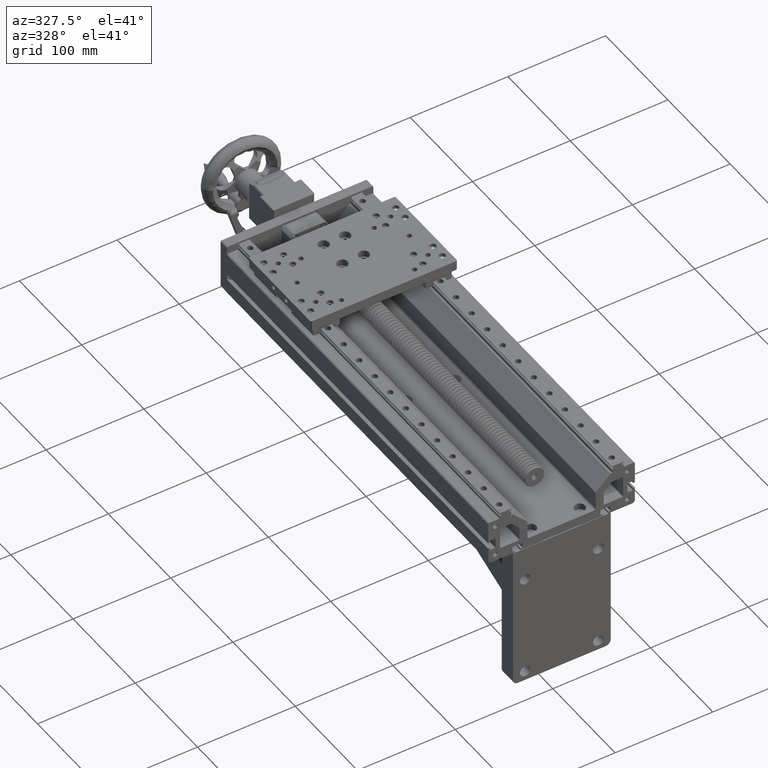
[diagram: clean part render]
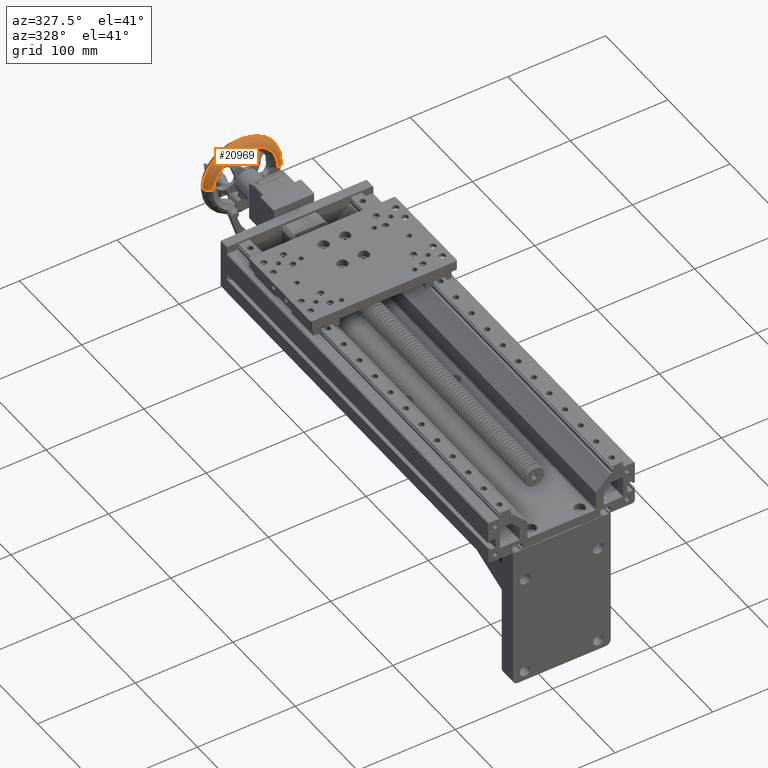
[diagram: same view with one face highlighted and labeled with its STEP entity id]
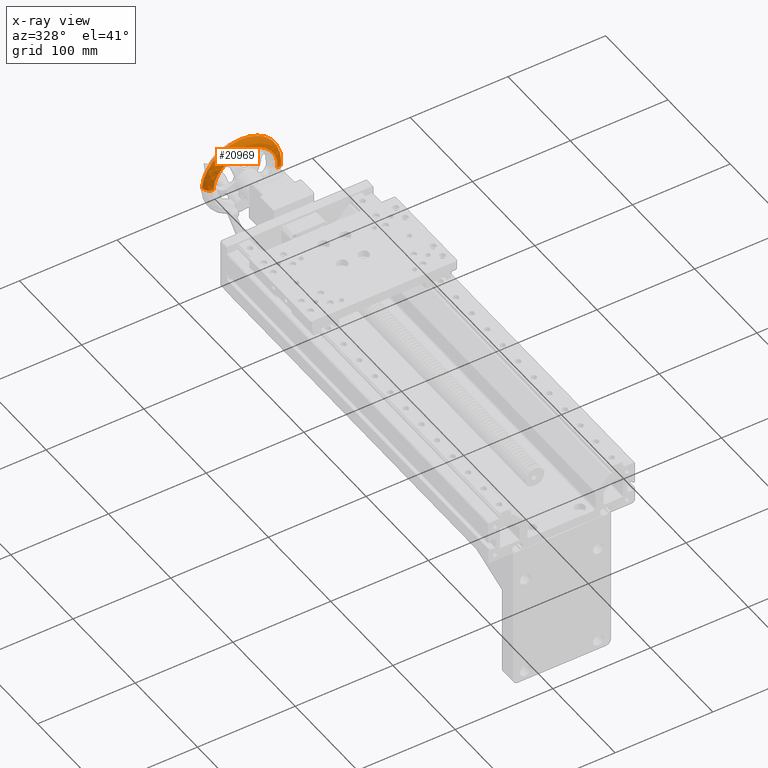
[diagram: x-ray of the same camera — body ghosted, the highlighted face saturated]
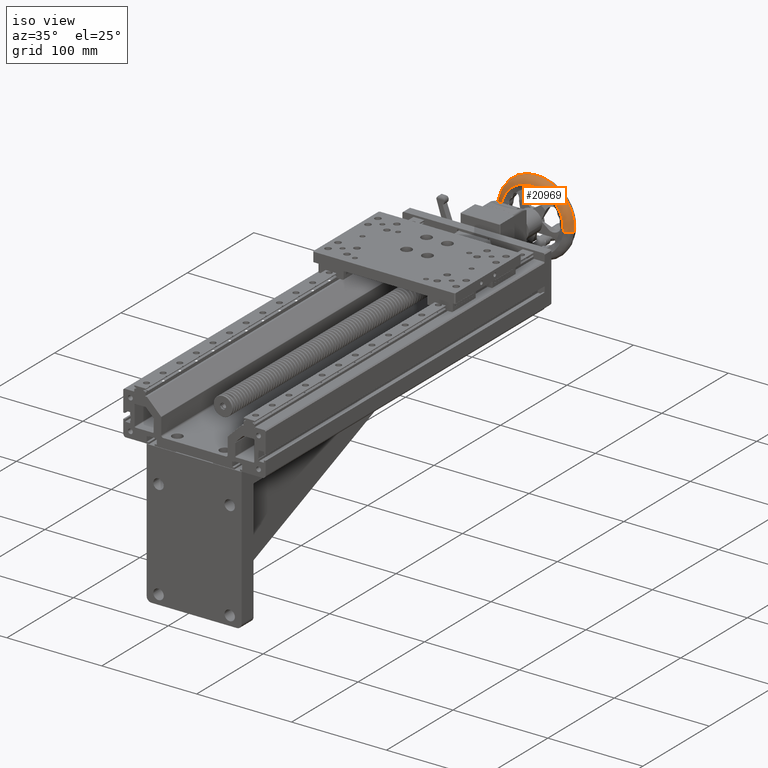
[diagram: same view with one face highlighted and labeled with its STEP entity id]
A machine part, auxiliary view. The second image highlights one B-rep face of the part: STEP entity #20969.
The next image is the same camera in x-ray: the body ghosted, the highlighted face saturated — about 0% of this face is hidden behind the body in this view.
A second angle (iso view) of the same face is appended — the face is thin or edge-on in the first view.
In plain terms, the highlighted face is a freeform B-spline surface patch.
Its self-contained STEP definition (entity closure, byte-faithful):
#504 = AXIS2_PLACEMENT_3D ( 'NONE', #29268, #2544, #10132 ) ;
#1074 = VERTEX_POINT ( 'NONE', #15726 ) ;
#1578 = CARTESIAN_POINT ( 'NONE',  ( -122.0710593101562438, 329.0134646088897057, 110.5216448162140068 ) ) ;
#1604 = DIRECTION ( 'NONE',  ( -5.716530647023959821E-16, -1.000000000000000000, -2.244361584020103863E-16 ) ) ;
#1622 =( BOUNDED_SURFACE ( )  B_SPLINE_SURFACE ( 3, 3, ( 
 ( #36316, #40616, #16962, #5372 ),
 ( #1823, #21246, #20757, #17206 ),
 ( #6111, #36581, #21501, #36071 ),
 ( #36834, #40114, #2323, #1578 ) ),
 .UNSPECIFIED., .F., .F., .F. ) 
 B_SPLINE_SURFACE_WITH_KNOTS ( ( 4, 4 ),
 ( 4, 4 ),
 ( 0.000000000000000000, 1.000000000000000000 ),
 ( 0.000000000000000000, 1.000000000000000000 ),
 .UNSPECIFIED. ) 
 GEOMETRIC_REPRESENTATION_ITEM ( )  RATIONAL_B_SPLINE_SURFACE ( (
 ( 1.000000000000000000, 0.3333333333333334259, 0.3333333333333334259, 1.000000000000000000),
 ( 0.8047884369213043065, 0.2682628123071015280, 0.2682628123071015280, 0.8047884369213043065),
 ( 0.8047884369213043065, 0.2682628123071015280, 0.2682628123071015280, 0.8047884369213043065),
 ( 1.000000000000000000, 0.3333333333333334259, 0.3333333333333334259, 1.000000000000000000) ) ) 
 REPRESENTATION_ITEM ( '' )  SURFACE ( )  );
#1823 = CARTESIAN_POINT ( 'NONE',  ( -45.19005230720301114, 322.0143446549475925, 104.6973255086508487 ) ) ;
#2323 = CARTESIAN_POINT ( 'NONE',  ( -116.0277696777333887, 329.0134646088897057, 190.2930598119295382 ) ) ;
#2544 = DIRECTION ( 'NONE',  ( 0.07554112040528571104, -2.669126656623855931E-16, 0.9971426874464427437 ) ) ;
#3409 = CIRCLE ( 'NONE', #16102, 7.000000000000005329 ) ;
#5372 = CARTESIAN_POINT ( 'NONE',  ( -115.0925585184763236, 322.0134647701000290, 109.9929704597859654 ) ) ;
#6111 = CARTESIAN_POINT ( 'NONE',  ( -42.29964431444074080, 324.9136572848888704, 104.4783551837911233 ) ) ;
#6740 = ORIENTED_EDGE ( 'NONE', *, *, #10794, .F. ) ;
#7166 = ORIENTED_EDGE ( 'NONE', *, *, #37487, .T. ) ;
#7611 = ORIENTED_EDGE ( 'NONE', *, *, #7809, .T. ) ;
#7809 = EDGE_CURVE ( 'NONE', #40707, #1074, #46390, .T. ) ;
#9433 = DIRECTION ( 'NONE',  ( 0.9971426874464427437, 0.000000000000000000, -0.07554112040528584981 ) ) ;
#10132 = DIRECTION ( 'NONE',  ( 0.9971426874464427437, 0.000000000000000000, -0.07554112040528521144 ) ) ;
#10609 = DIRECTION ( 'NONE',  ( 0.9971426874464427437, 0.000000000000000000, -0.07554112040528589145 ) ) ;
#10794 = EDGE_CURVE ( 'NONE', #40707, #10870, #3409, .T. ) ;
#10870 = VERTEX_POINT ( 'NONE', #40926 ) ;
#13863 = CARTESIAN_POINT ( 'NONE',  ( -82.18535181229847808, 322.0134647700999722, 107.5000000000025580 ) ) ;
#15726 = CARTESIAN_POINT ( 'NONE',  ( -49.27814510586544827, 322.0134647700999722, 105.0070295401998379 ) ) ;
#16102 = AXIS2_PLACEMENT_3D ( 'NONE', #16523, #39666, #24350 ) ;
#16523 = CARTESIAN_POINT ( 'NONE',  ( -115.0910604980311405, 329.0134646088897057, 109.9928569733770019 ) ) ;
#16962 = CARTESIAN_POINT ( 'NONE',  ( -110.1066175989095086, 322.0134647701000290, 175.8073838721416564 ) ) ;
#17206 = CARTESIAN_POINT ( 'NONE',  ( -119.1806513173939948, 322.0143446549478199, 110.3026744913542672 ) ) ;
#17472 = CARTESIAN_POINT ( 'NONE',  ( -115.0925585184762951, 322.0134647700999722, 109.9929704597859654 ) ) ;
#18244 = AXIS2_PLACEMENT_3D ( 'NONE', #47460, #1604, #9433 ) ;
#19348 = ORIENTED_EDGE ( 'NONE', *, *, #39637, .T. ) ;
#20757 = CARTESIAN_POINT ( 'NONE',  ( -113.5753023346905763, 322.0143446549478767, 184.2932735015452863 ) ) ;
#20969 = ADVANCED_FACE ( 'NONE', ( #21751 ), #1622, .T. ) ;
#21246 = CARTESIAN_POINT ( 'NONE',  ( -39.58470332449958562, 322.0143446549477630, 178.6879245188418111 ) ) ;
#21444 = DIRECTION ( 'NONE',  ( 5.716530647023959821E-16, 1.000000000000000000, 2.244361584020103863E-16 ) ) ;
#21501 = CARTESIAN_POINT ( 'NONE',  ( -116.0277696777333603, 324.9136572848889841, 190.2930598119295098 ) ) ;
#21751 = FACE_OUTER_BOUND ( 'NONE', #40500, .T. ) ;
#22260 = CIRCLE ( 'NONE', #504, 7.000000000000012434 ) ;
#24350 = DIRECTION ( 'NONE',  ( -0.9971426874464427437, 0.000000000000000000, 0.07554112040528529470 ) ) ;
#29268 = CARTESIAN_POINT ( 'NONE',  ( -49.27964312656585832, 329.0134646088895920, 105.0071430266281283 ) ) ;
#36071 = CARTESIAN_POINT ( 'NONE',  ( -122.0710593101562296, 324.9136572848888704, 110.5216448162139784 ) ) ;
#36316 = CARTESIAN_POINT ( 'NONE',  ( -49.27814510612067522, 322.0134647700999153, 105.0070295402191647 ) ) ;
#36581 = CARTESIAN_POINT ( 'NONE',  ( -36.25635468201787148, 324.9136572848887567, 184.2497701795066405 ) ) ;
#36834 = CARTESIAN_POINT ( 'NONE',  ( -42.29964431444074791, 329.0134646088895920, 104.4783551837911233 ) ) ;
#37487 = EDGE_CURVE ( 'NONE', #1074, #38435, #22260, .T. ) ;
#38435 = VERTEX_POINT ( 'NONE', #38689 ) ;
#38689 = CARTESIAN_POINT ( 'NONE',  ( -42.29964431444074791, 329.0134646088895920, 104.4783551837911233 ) ) ;
#39637 = EDGE_CURVE ( 'NONE', #38435, #10870, #49615, .T. ) ;
#39666 = DIRECTION ( 'NONE',  ( -0.07554112040528583594, 2.670437086173552272E-16, -0.9971426874464427437 ) ) ;
#40114 = CARTESIAN_POINT ( 'NONE',  ( -36.25635468201787859, 329.0134646088895920, 184.2497701795065836 ) ) ;
#40500 = EDGE_LOOP ( 'NONE', ( #6740, #7611, #7166, #19348 ) ) ;
#40616 = CARTESIAN_POINT ( 'NONE',  ( -44.29220418655386737, 322.0134647700999153, 170.8214429525747562 ) ) ;
#40707 = VERTEX_POINT ( 'NONE', #17472 ) ;
#40926 = CARTESIAN_POINT ( 'NONE',  ( -122.0710593101562296, 329.0134646088895920, 110.5216448162140210 ) ) ;
#46390 = CIRCLE ( 'NONE', #46946, 33.00150231325243055 ) ;
#46946 = AXIS2_PLACEMENT_3D ( 'NONE', #13863, #21444, #10609 ) ;
#47460 = CARTESIAN_POINT ( 'NONE',  ( -82.18535181229847808, 329.0134646088895920, 107.5000000000025722 ) ) ;
#49615 = CIRCLE ( 'NONE', #18244, 40.00000000000002132 ) ;